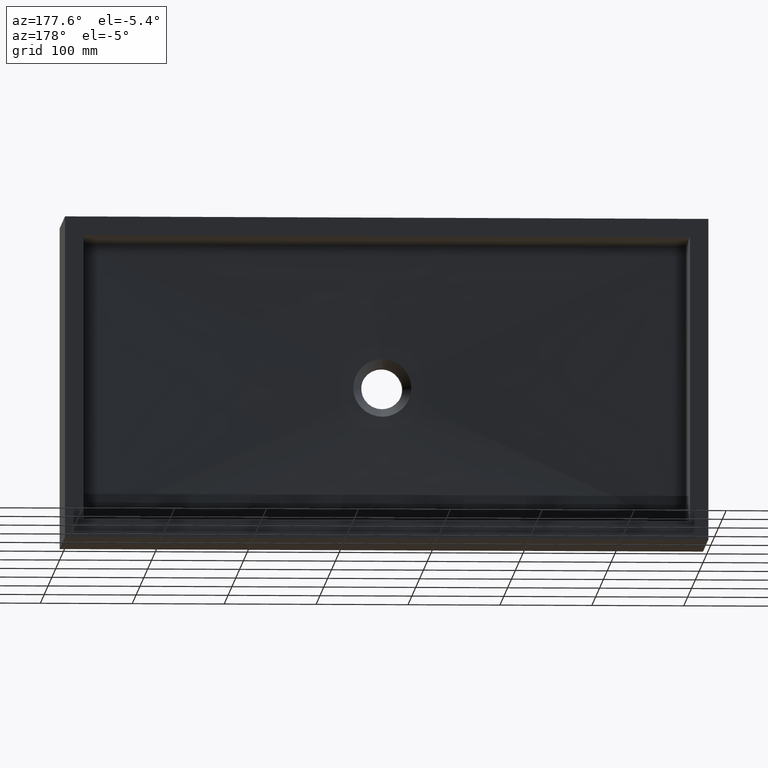
[diagram: clean part render]
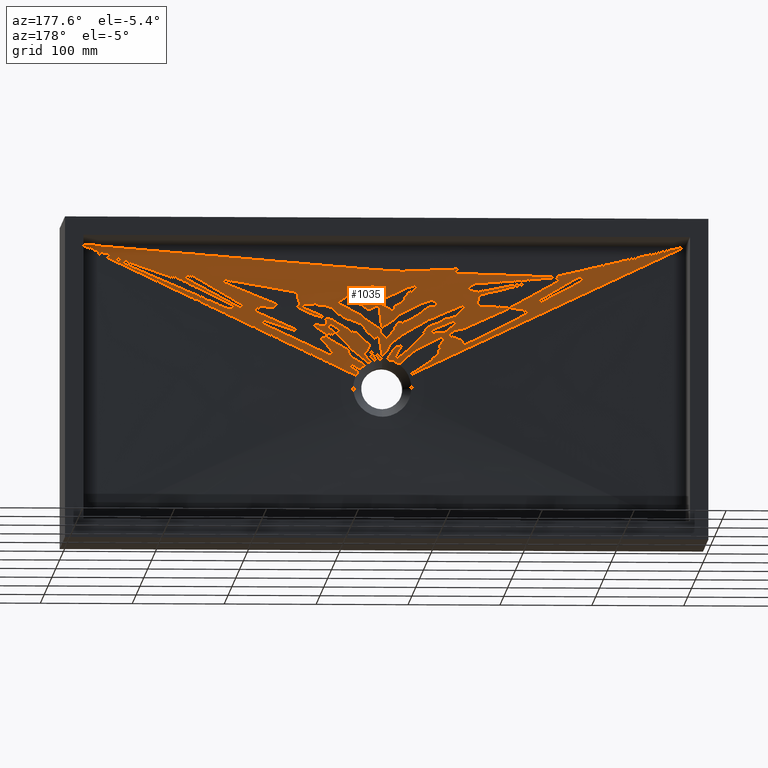
[diagram: same view with one face highlighted and labeled with its STEP entity id]
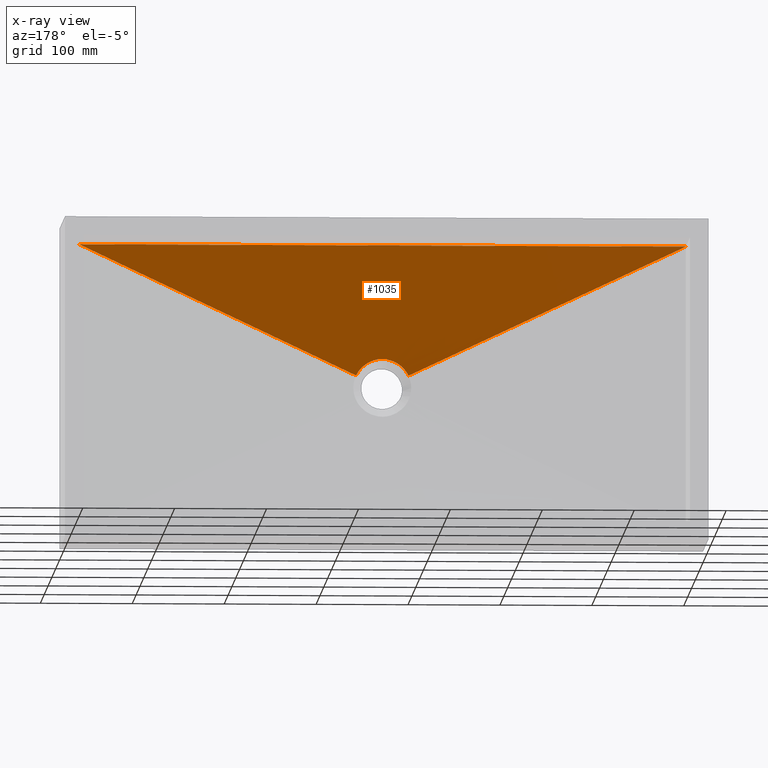
[diagram: x-ray of the same camera — body ghosted, the highlighted face saturated]
A machine part, auxiliary view. The second image highlights one B-rep face of the part: STEP entity #1035.
The next image is the same camera in x-ray: the body ghosted, the highlighted face saturated — about 0% of this face is hidden behind the body in this view.
In plain terms, the highlighted face is a freeform B-spline surface patch.
Its self-contained STEP definition (entity closure, byte-faithful):
#6 = CARTESIAN_POINT ( 'NONE',  ( 343.3937862718099700, 25.00000000000000000, -144.1559935591858200 ) ) ;
#14 = CARTESIAN_POINT ( 'NONE',  ( 348.3328162882058900, 25.00000000000000000, -143.4999999999996900 ) ) ;
#15 = FACE_OUTER_BOUND ( 'NONE', #992, .T. ) ;
#41 = CARTESIAN_POINT ( 'NONE',  ( 361.3033238118888400, 25.00000000000000400, -145.5529398405549800 ) ) ;
#57 = CARTESIAN_POINT ( 'NONE',  ( 501.2499999999998900, 30.00000000000000400, -20.00000000000000400 ) ) ;
#63 = CARTESIAN_POINT ( 'NONE',  ( 583.7500000000000000, 30.00000000000001100, -20.00000000000000400 ) ) ;
#73 = VERTEX_POINT ( 'NONE', #993 ) ;
#76 = CARTESIAN_POINT ( 'NONE',  ( 446.2499999999998300, 30.00000000000000000, -19.99999999999999600 ) ) ;
#87 = ORIENTED_EDGE ( 'NONE', *, *, #868, .F. ) ;
#92 = CARTESIAN_POINT ( 'NONE',  ( 281.2499999999997700, 30.00000000000000000, -19.99999999999999600 ) ) ;
#115 = EDGE_CURVE ( 'NONE', #1110, #735, #1141, .T. ) ;
#116 = VECTOR ( 'NONE', #192, 1000.000000000000100 ) ;
#119 = ORIENTED_EDGE ( 'NONE', *, *, #535, .T. ) ;
#120 = CARTESIAN_POINT ( 'NONE',  ( 346.6657633779384500, 24.99999999999999300, -143.6331758175677200 ) ) ;
#125 = CARTESIAN_POINT ( 'NONE',  ( 345.0297748232162000, 25.00000000000000000, -143.8945846886416900 ) ) ;
#136 = CARTESIAN_POINT ( 'NONE',  ( 375.3157496173464600, 25.00000000000001100, -156.2061360017338500 ) ) ;
#142 = CARTESIAN_POINT ( 'NONE',  ( 569.9999999999998900, 30.00000000000000700, -20.00000000000000400 ) ) ;
#146 = B_SPLINE_CURVE_WITH_KNOTS ( 'NONE', 3,
 ( #652, #169, #238, #244, #253, #410, #345, #248, #252, #257, #272, #284, #291, #292, #296, #303 ),
 .UNSPECIFIED., .F., .F.,
 ( 4, 2, 2, 2, 2, 2, 2, 4 ),
 ( 0.0000000000000000000, 0.1428571428157790500, 0.2857142856798158800, 0.4285714285438527200, 0.5714285714078895000, 0.7142857142719263300, 0.8571428571359631700, 1.000000000000000000 ),
 .UNSPECIFIED. ) ;
#162 = CARTESIAN_POINT ( 'NONE',  ( 322.4999999999997700, 30.00000000000000000, -19.99999999999999600 ) ) ;
#167 = VERTEX_POINT ( 'NONE', #1172 ) ;
#169 = CARTESIAN_POINT ( 'NONE',  ( 343.3937862718099700, 25.00000000000000000, -144.1559935591858200 ) ) ;
#171 = CARTESIAN_POINT ( 'NONE',  ( 350.0000000000000000, 24.99999999999998900, -143.4999999999996900 ) ) ;
#178 = CARTESIAN_POINT ( 'NONE',  ( 365.6075205703249400, 25.00000000000000400, -147.5929861643090500 ) ) ;
#189 = EDGE_CURVE ( 'NONE', #73, #1110, #428, .T. ) ;
#192 = DIRECTION ( 'NONE',  ( 0.9050273024632505800, -0.01500932071771084700, -0.4250885814600116600 ) ) ;
#208 = CARTESIAN_POINT ( 'NONE',  ( 528.7499999999998900, 30.00000000000000700, -20.00000000000000400 ) ) ;
#212 = CARTESIAN_POINT ( 'NONE',  ( 373.6032391787110800, 25.00000000000001100, -154.0958472320436400 ) ) ;
#213 = CARTESIAN_POINT ( 'NONE',  ( 351.6671837117938800, 24.99999999999999600, -143.4999999999997200 ) ) ;
#214 = CARTESIAN_POINT ( 'NONE',  ( 350.0000000000000000, 24.99999999999998900, -143.4999999999996900 ) ) ;
#232 = CARTESIAN_POINT ( 'NONE',  ( 157.4999999999998600, 30.00000000000000000, -20.00000000000000400 ) ) ;
#238 = CARTESIAN_POINT ( 'NONE',  ( 341.7890906172909200, 24.99999999999999600, -144.5455184194620400 ) ) ;
#244 = CARTESIAN_POINT ( 'NONE',  ( 338.6966761881111000, 25.00000000000000400, -145.5529398405550100 ) ) ;
#248 = CARTESIAN_POINT ( 'NONE',  ( 330.5894850155410200, 25.00000000000000400, -150.1449100289054900 ) ) ;
#249 = CARTESIAN_POINT ( 'NONE',  ( 327.3481446603466900, 25.00000000000000400, -153.0633238532582300 ) ) ;
#252 = CARTESIAN_POINT ( 'NONE',  ( 329.4444528947909100, 24.99999999999999600, -151.0877898574568400 ) ) ;
#253 = CARTESIAN_POINT ( 'NONE',  ( 337.2091005317991500, 25.00000000000000400, -146.1706400255355900 ) ) ;
#255 = CARTESIAN_POINT ( 'NONE',  ( 356.6062137281900300, 24.99999999999999300, -144.1559935591857300 ) ) ;
#256 = CARTESIAN_POINT ( 'NONE',  ( 129.9999999999998600, 30.00000000000000000, -20.00000000000000000 ) ) ;
#257 = CARTESIAN_POINT ( 'NONE',  ( 327.3481446603466900, 25.00000000000000400, -153.0633238532582300 ) ) ;
#272 = CARTESIAN_POINT ( 'NONE',  ( 326.3967608212890400, 25.00000000000000400, -154.0958472320436400 ) ) ;
#274 = CARTESIAN_POINT ( 'NONE',  ( 542.4999999999998900, 30.00000000000000700, -20.00000000000000400 ) ) ;
#278 = CARTESIAN_POINT ( 'NONE',  ( 326.3967608212890400, 25.00000000000000400, -154.0958472320436400 ) ) ;
#284 = CARTESIAN_POINT ( 'NONE',  ( 324.6842503826536000, 25.00000000000001100, -156.2061360017339100 ) ) ;
#287 = CARTESIAN_POINT ( 'NONE',  ( 372.6518553396533100, 25.00000000000000700, -153.0633238532582000 ) ) ;
#291 = CARTESIAN_POINT ( 'NONE',  ( 323.9229975251313900, 25.00000000000000400, -157.2838352907153000 ) ) ;
#292 = CARTESIAN_POINT ( 'NONE',  ( 322.5776721752322900, 25.00000000000000400, -159.4472353984323300 ) ) ;
#294 = CARTESIAN_POINT ( 'NONE',  ( 321.9934827942635100, 25.00000000000000400, -160.5329237366995600 ) ) ;
#296 = CARTESIAN_POINT ( 'NONE',  ( 321.9934827942635100, 25.00000000000000400, -160.5329237366995600 ) ) ;
#299 = CARTESIAN_POINT ( 'NONE',  ( 338.6966761881111000, 25.00000000000000400, -145.5529398405550100 ) ) ;
#303 = CARTESIAN_POINT ( 'NONE',  ( 321.4884282522285200, 25.00000000000000000, -161.6082011487739900 ) ) ;
#318 = CARTESIAN_POINT ( 'NONE',  ( 370.5555471052089700, 25.00000000000000400, -151.0877898574568700 ) ) ;
#330 = CARTESIAN_POINT ( 'NONE',  ( 322.5776721752322900, 25.00000000000000400, -159.4472353984323300 ) ) ;
#336 = CARTESIAN_POINT ( 'NONE',  ( 170.7442141261142600, 27.50000000000000400, -90.80410057438699300 ) ) ;
#345 = CARTESIAN_POINT ( 'NONE',  ( 333.0634722785785000, 25.00000000000000400, -148.3974133179754100 ) ) ;
#357 = ORIENTED_EDGE ( 'NONE', *, *, #746, .T. ) ;
#362 = CARTESIAN_POINT ( 'NONE',  ( 336.2499999999997700, 30.00000000000000000, -19.99999999999999600 ) ) ;
#363 = CARTESIAN_POINT ( 'NONE',  ( 329.4444528947909100, 24.99999999999999600, -151.0877898574568400 ) ) ;
#375 = CARTESIAN_POINT ( 'NONE',  ( 330.5894850155410200, 25.00000000000000400, -150.1449100289054900 ) ) ;
#378 = CARTESIAN_POINT ( 'NONE',  ( 334.3924794296751200, 25.00000000000000000, -147.5929861643090200 ) ) ;
#381 = CARTESIAN_POINT ( 'NONE',  ( 198.7499999999998300, 30.00000000000000000, -20.00000000000000400 ) ) ;
#382 = EDGE_CURVE ( 'NONE', #73, #1043, #753, .T. ) ;
#391 = CARTESIAN_POINT ( 'NONE',  ( 378.5115717477714300, 25.00000000000000000, -161.6082011487739900 ) ) ;
#401 = CARTESIAN_POINT ( 'NONE',  ( 253.7499999999998000, 30.00000000000000000, -20.00000000000000000 ) ) ;
#410 = CARTESIAN_POINT ( 'NONE',  ( 334.3924794296751200, 25.00000000000000000, -147.5929861643090200 ) ) ;
#419 = CARTESIAN_POINT ( 'NONE',  ( 74.99999999999992900, 30.00000000000000400, -19.99999999999999600 ) ) ;
#421 = CARTESIAN_POINT ( 'NONE',  ( 324.6842503826536000, 25.00000000000001100, -156.2061360017339100 ) ) ;
#428 = LINE ( 'NONE', #624, #903 ) ;
#429 = B_SPLINE_CURVE_WITH_KNOTS ( 'NONE', 3,
 ( #171, #14, #120, #125 ),
 .UNSPECIFIED., .F., .F.,
 ( 4, 4 ),
 ( 0.8333333333136983000, 1.000000000000000000 ),
 .UNSPECIFIED. ) ;
#433 = VERTEX_POINT ( 'NONE', #1009 ) ;
#439 = CARTESIAN_POINT ( 'NONE',  ( 377.4999999999997700, 30.00000000000000000, -19.99999999999999600 ) ) ;
#452 = VERTEX_POINT ( 'NONE', #600 ) ;
#454 = CARTESIAN_POINT ( 'NONE',  ( 652.5000000000000000, 30.00000000000000700, -20.00000000000000400 ) ) ;
#455 = CARTESIAN_POINT ( 'NONE',  ( 362.7908994682008500, 25.00000000000000000, -146.1706400255355900 ) ) ;
#473 = CARTESIAN_POINT ( 'NONE',  ( 212.4999999999998300, 30.00000000000000000, -20.00000000000000400 ) ) ;
#475 = CARTESIAN_POINT ( 'NONE',  ( 116.2499999999998900, 30.00000000000000400, -19.99999999999999600 ) ) ;
#480 = CARTESIAN_POINT ( 'NONE',  ( 361.3033238118888400, 25.00000000000000400, -145.5529398405549800 ) ) ;
#488 = CARTESIAN_POINT ( 'NONE',  ( 88.74999999999991500, 30.00000000000000400, -19.99999999999999600 ) ) ;
#489 = CARTESIAN_POINT ( 'NONE',  ( 239.9999999999998300, 30.00000000000000000, -20.00000000000000000 ) ) ;
#496 = CARTESIAN_POINT ( 'NONE',  ( 362.7908994682008500, 25.00000000000000000, -146.1706400255355900 ) ) ;
#507 = CARTESIAN_POINT ( 'NONE',  ( 20.00000000000000000, 30.00000000000000400, -20.00000000000000000 ) ) ;
#511 = CARTESIAN_POINT ( 'NONE',  ( 666.2500000000000000, 30.00000000000000700, -20.00000000000000400 ) ) ;
#512 = VECTOR ( 'NONE', #1068, 1000.000000000000000 ) ;
#514 = ORIENTED_EDGE ( 'NONE', *, *, #115, .F. ) ;
#533 = CARTESIAN_POINT ( 'NONE',  ( 625.0000000000000000, 30.00000000000000700, -20.00000000000000400 ) ) ;
#535 = EDGE_CURVE ( 'NONE', #433, #452, #429, .T. ) ;
#537 = CARTESIAN_POINT ( 'NONE',  ( 371.6037012255196700, 25.00000000000000000, -152.0755568582681300 ) ) ;
#542 = CARTESIAN_POINT ( 'NONE',  ( 341.7890906172909200, 24.99999999999999600, -144.5455184194620400 ) ) ;
#575 = CARTESIAN_POINT ( 'NONE',  ( 378.0065172057364900, 25.00000000000000400, -160.5329237366995300 ) ) ;
#581 = CARTESIAN_POINT ( 'NONE',  ( 679.9999999999998900, 30.00000000000000400, -20.00000000000000000 ) ) ;
#599 = CARTESIAN_POINT ( 'NONE',  ( 346.6657633779384500, 24.99999999999999300, -143.6331758175677200 ) ) ;
#600 = CARTESIAN_POINT ( 'NONE',  ( 345.0297748232162000, 25.00000000000000000, -143.8945846886416900 ) ) ;
#620 = CARTESIAN_POINT ( 'NONE',  ( 679.9999999999998900, 30.00000000000002800, -20.00000000000000000 ) ) ;
#622 = EDGE_CURVE ( 'NONE', #452, #167, #146, .T. ) ;
#624 = CARTESIAN_POINT ( 'NONE',  ( 529.2557858738856600, 27.50000000000000400, -90.80410057438699300 ) ) ;
#633 = CARTESIAN_POINT ( 'NONE',  ( 366.9365277214216100, 25.00000000000000700, -148.3974133179754100 ) ) ;
#638 = CARTESIAN_POINT ( 'NONE',  ( 459.9999999999997700, 30.00000000000000000, -20.00000000000000000 ) ) ;
#642 = CARTESIAN_POINT ( 'NONE',  ( 363.7499999999997200, 30.00000000000000000, -19.99999999999999600 ) ) ;
#652 = CARTESIAN_POINT ( 'NONE',  ( 345.0297748232162000, 25.00000000000000000, -143.8945846886416900 ) ) ;
#660 = CARTESIAN_POINT ( 'NONE',  ( 47.49999999999995700, 30.00000000000000400, -20.00000000000000000 ) ) ;
#694 = CARTESIAN_POINT ( 'NONE',  ( 321.4884282522285200, 25.00000000000000000, -161.6082011487739900 ) ) ;
#726 = CARTESIAN_POINT ( 'NONE',  ( 376.0770024748685500, 25.00000000000000700, -157.2838352907152700 ) ) ;
#729 = DIRECTION ( 'NONE',  ( 0.9050273024632505800, 0.01500932071771084700, 0.4250885814600116600 ) ) ;
#735 = VERTEX_POINT ( 'NONE', #971 ) ;
#746 = EDGE_CURVE ( 'NONE', #1043, #433, #928, .T. ) ;
#753 = B_SPLINE_CURVE_WITH_KNOTS ( 'NONE', 3,
 ( #1081, #1116, #1052, #726, #1100, #212, #287, #537 ),
 .UNSPECIFIED., .F., .F.,
 ( 4, 2, 2, 4 ),
 ( 0.0000000000000000000, 0.3333333334424661800, 0.6666666668849323700, 1.000000000000000000 ),
 .UNSPECIFIED. ) ;
#757 = CARTESIAN_POINT ( 'NONE',  ( 377.4223278247676500, 25.00000000000000400, -159.4472353984323000 ) ) ;
#770 = CARTESIAN_POINT ( 'NONE',  ( 373.6032391787110800, 25.00000000000001100, -154.0958472320436400 ) ) ;
#785 = CARTESIAN_POINT ( 'NONE',  ( 358.2109093827091900, 25.00000000000000400, -144.5455184194620400 ) ) ;
#794 = ORIENTED_EDGE ( 'NONE', *, *, #622, .T. ) ;
#795 = CARTESIAN_POINT ( 'NONE',  ( 171.2499999999998600, 30.00000000000000000, -20.00000000000000400 ) ) ;
#817 = CARTESIAN_POINT ( 'NONE',  ( 369.4105149844588700, 25.00000000000000400, -150.1449100289054300 ) ) ;
#833 = CARTESIAN_POINT ( 'NONE',  ( 351.6671837117940000, 24.99999999999999600, -143.4999999999997200 ) ) ;
#844 = CARTESIAN_POINT ( 'NONE',  ( 353.3342366220616100, 25.00000000000000000, -143.6331758175677700 ) ) ;
#849 = CARTESIAN_POINT ( 'NONE',  ( 370.5555471052089700, 25.00000000000000400, -151.0877898574568700 ) ) ;
#856 = CARTESIAN_POINT ( 'NONE',  ( 376.0770024748685500, 25.00000000000000700, -157.2838352907152700 ) ) ;
#868 = EDGE_CURVE ( 'NONE', #735, #167, #1086, .T. ) ;
#883 = CARTESIAN_POINT ( 'NONE',  ( 371.6037012255196700, 25.00000000000000000, -152.0755568582681300 ) ) ;
#903 = VECTOR ( 'NONE', #729, 1000.000000000000100 ) ;
#924 = CARTESIAN_POINT ( 'NONE',  ( 487.4999999999998900, 30.00000000000000000, -20.00000000000000400 ) ) ;
#928 = B_SPLINE_CURVE_WITH_KNOTS ( 'NONE', 3,
 ( #1024, #318, #817, #1016, #948, #455, #480, #1143, #1147, #1144, #213, #214 ),
 .UNSPECIFIED., .F., .F.,
 ( 4, 2, 2, 2, 2, 4 ),
 ( 0.0000000000000000000, 0.1666666667936990700, 0.3333333334236988600, 0.5000000000536986000, 0.6666666666836984500, 0.8333333333136983000 ),
 .UNSPECIFIED. ) ;
#938 = CARTESIAN_POINT ( 'NONE',  ( 294.9999999999997700, 30.00000000000000000, -19.99999999999999600 ) ) ;
#948 = CARTESIAN_POINT ( 'NONE',  ( 365.6075205703249400, 25.00000000000000400, -147.5929861643090500 ) ) ;
#957 = CARTESIAN_POINT ( 'NONE',  ( 611.2500000000000000, 30.00000000000000700, -20.00000000000000400 ) ) ;
#967 = CARTESIAN_POINT ( 'NONE',  ( 348.3328162882058900, 25.00000000000000000, -143.4999999999996900 ) ) ;
#971 = CARTESIAN_POINT ( 'NONE',  ( 20.00000000000000000, 30.00000000000002800, -20.00000000000000000 ) ) ;
#974 = CARTESIAN_POINT ( 'NONE',  ( 369.4105149844588700, 25.00000000000000400, -150.1449100289054300 ) ) ;
#976 = CARTESIAN_POINT ( 'NONE',  ( 404.9999999999998300, 30.00000000000000000, -19.99999999999999600 ) ) ;
#992 = EDGE_LOOP ( 'NONE', ( #1124, #357, #119, #794, #87, #514, #1190 ) ) ;
#993 = CARTESIAN_POINT ( 'NONE',  ( 378.5115717477714300, 25.00000000000000000, -161.6082011487739900 ) ) ;
#1009 = CARTESIAN_POINT ( 'NONE',  ( 350.0000000000000000, 24.99999999999998900, -143.4999999999996900 ) ) ;
#1016 = CARTESIAN_POINT ( 'NONE',  ( 366.9365277214216100, 25.00000000000000700, -148.3974133179754100 ) ) ;
#1024 = CARTESIAN_POINT ( 'NONE',  ( 371.6037012255196700, 25.00000000000000000, -152.0755568582681300 ) ) ;
#1035 = ADVANCED_FACE ( 'NONE', ( #15 ), #1113, .F. ) ;
#1043 = VERTEX_POINT ( 'NONE', #883 ) ;
#1052 = CARTESIAN_POINT ( 'NONE',  ( 377.4223278247676500, 25.00000000000000400, -159.4472353984323000 ) ) ;
#1063 = CARTESIAN_POINT ( 'NONE',  ( 349.9999999999997700, 30.00000000000000000, -19.99999999999999600 ) ) ;
#1068 = DIRECTION ( 'NONE',  ( -1.000000000000000000, -0.0000000000000000000, -0.0000000000000000000 ) ) ;
#1081 = CARTESIAN_POINT ( 'NONE',  ( 378.5115717477714300, 25.00000000000000000, -161.6082011487739900 ) ) ;
#1086 = LINE ( 'NONE', #336, #116 ) ;
#1100 = CARTESIAN_POINT ( 'NONE',  ( 375.3157496173464600, 25.00000000000001100, -156.2061360017338500 ) ) ;
#1110 = VERTEX_POINT ( 'NONE', #620 ) ;
#1113 = B_SPLINE_SURFACE_WITH_KNOTS ( 'NONE', 3, 1, ( 
 ( #694, #507 ),
 ( #294, #1150 ),
 ( #330, #660 ),
 ( #1208, #419 ),
 ( #421, #488 ),
 ( #278, #475 ),
 ( #249, #256 ),
 ( #363, #232 ),
 ( #375, #795 ),
 ( #1205, #381 ),
 ( #378, #473 ),
 ( #1177, #489 ),
 ( #299, #401 ),
 ( #542, #92 ),
 ( #6, #938 ),
 ( #599, #162 ),
 ( #967, #362 ),
 ( #833, #642 ),
 ( #844, #439 ),
 ( #255, #976 ),
 ( #785, #1169 ),
 ( #41, #76 ),
 ( #496, #638 ),
 ( #178, #924 ),
 ( #633, #57 ),
 ( #974, #208 ),
 ( #849, #274 ),
 ( #1165, #142 ),
 ( #770, #63 ),
 ( #136, #957 ),
 ( #856, #533 ),
 ( #757, #454 ),
 ( #575, #511 ),
 ( #391, #581 ) ),
 .UNSPECIFIED., .F., .F., .F.,
 ( 4, 2, 2, 2, 2, 2, 2, 2, 2, 2, 2, 2, 2, 2, 2, 2, 4 ),
 ( 2, 2 ),
 ( 0.0000000000000000000, 0.06250000000000000000, 0.1250000000000000000, 0.1875000000000000000, 0.2500000000000000000, 0.3125000000000000000, 0.3750000000000000000, 0.4375000000000000000, 0.5000000000000000000, 0.5625000000000000000, 0.6250000000000000000, 0.6875000000000000000, 0.7500000000000000000, 0.8125000000000000000, 0.8750000000000000000, 0.9375000000000000000, 1.000000000000000000 ),
 ( 0.0000000000000000000, 1.000000000000000000 ),
 .UNSPECIFIED. ) ;
#1116 = CARTESIAN_POINT ( 'NONE',  ( 378.0065172057364900, 25.00000000000000400, -160.5329237366995300 ) ) ;
#1124 = ORIENTED_EDGE ( 'NONE', *, *, #382, .T. ) ;
#1141 = LINE ( 'NONE', #1063, #512 ) ;
#1143 = CARTESIAN_POINT ( 'NONE',  ( 358.2109093827091900, 25.00000000000000400, -144.5455184194620400 ) ) ;
#1144 = CARTESIAN_POINT ( 'NONE',  ( 353.3342366220616100, 25.00000000000000000, -143.6331758175677700 ) ) ;
#1147 = CARTESIAN_POINT ( 'NONE',  ( 356.6062137281900300, 24.99999999999999300, -144.1559935591857300 ) ) ;
#1150 = CARTESIAN_POINT ( 'NONE',  ( 33.74999999999997900, 30.00000000000000400, -20.00000000000000000 ) ) ;
#1165 = CARTESIAN_POINT ( 'NONE',  ( 372.6518553396533100, 25.00000000000000700, -153.0633238532582000 ) ) ;
#1169 = CARTESIAN_POINT ( 'NONE',  ( 418.7499999999997700, 30.00000000000000000, -19.99999999999999600 ) ) ;
#1172 = CARTESIAN_POINT ( 'NONE',  ( 321.4884282522285200, 25.00000000000000000, -161.6082011487739900 ) ) ;
#1177 = CARTESIAN_POINT ( 'NONE',  ( 337.2091005317991500, 25.00000000000000400, -146.1706400255355900 ) ) ;
#1190 = ORIENTED_EDGE ( 'NONE', *, *, #189, .F. ) ;
#1205 = CARTESIAN_POINT ( 'NONE',  ( 333.0634722785785000, 25.00000000000000400, -148.3974133179754100 ) ) ;
#1208 = CARTESIAN_POINT ( 'NONE',  ( 323.9229975251313900, 25.00000000000000400, -157.2838352907153000 ) ) ;